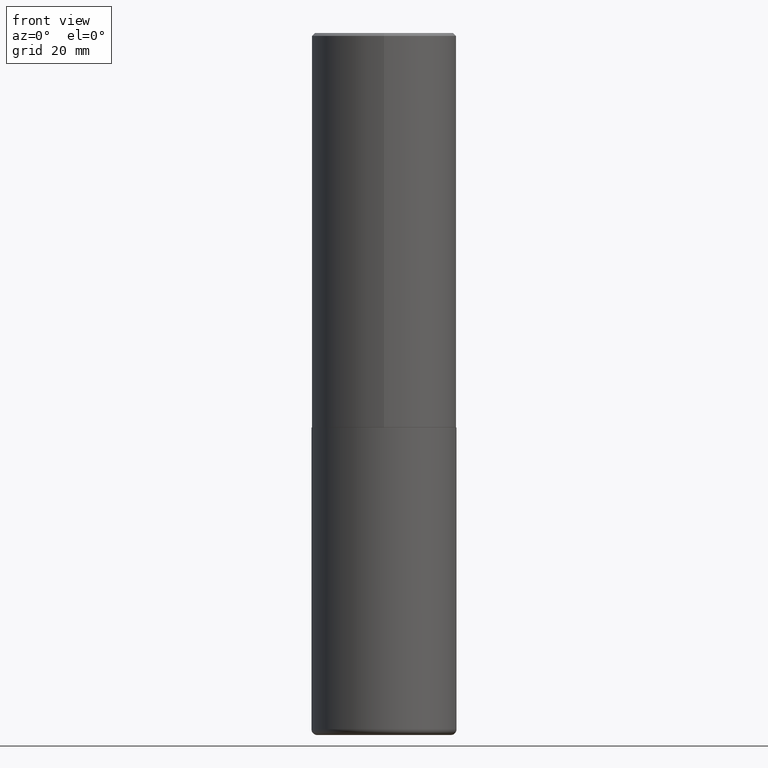
[diagram: clean part render]
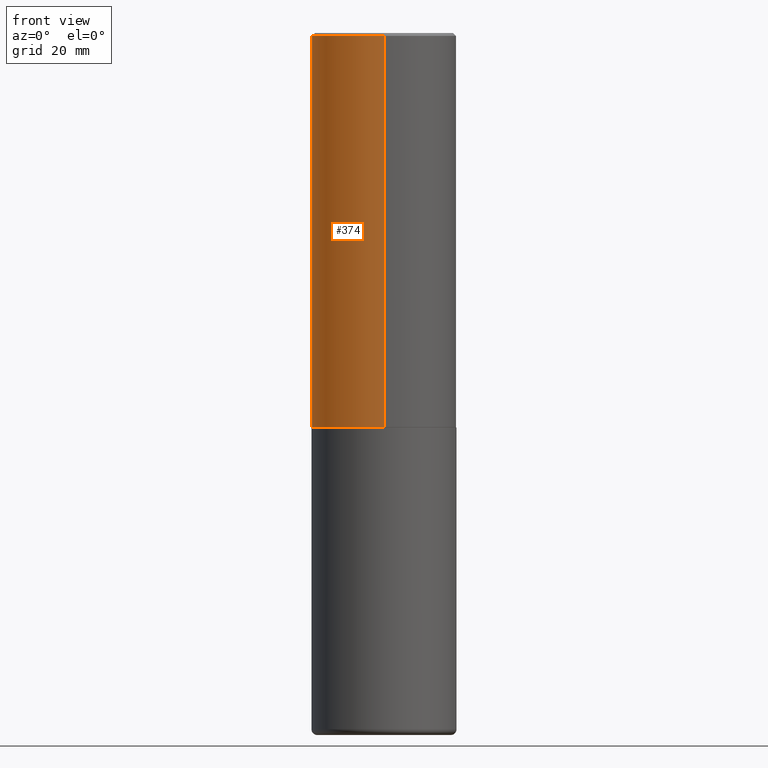
[diagram: same view with one face highlighted and labeled with its STEP entity id]
A machine part, front view. The second image highlights one B-rep face of the part: STEP entity #374.
In plain terms, the highlighted cylindrical surface (partial cylindrical patch) has radius 12.5006 mm, axis along (-0, 0, 1).
Its self-contained STEP definition (entity closure, byte-faithful):
#14 = CIRCLE ( 'NONE', #384, 0.4921500000000002539 ) ;
#21 = ORIENTED_EDGE ( 'NONE', *, *, #412, .T. ) ;
#38 = DIRECTION ( 'NONE',  ( -2.447117958567619178E-29, 3.489119658767506053E-15, 1.000000000000000000 ) ) ;
#49 = CYLINDRICAL_SURFACE ( 'NONE', #166, 0.4921500000000000874 ) ;
#65 = CARTESIAN_POINT ( 'NONE',  ( -3.376394089603257868E-15, -0.4921499999999999764, -0.01999999999999839059 ) ) ;
#95 = ORIENTED_EDGE ( 'NONE', *, *, #389, .T. ) ;
#102 = CARTESIAN_POINT ( 'NONE',  ( 3.496936074043333291E-15, 0.4921500000000000874, -1.717170240062428491E-15 ) ) ;
#121 = CARTESIAN_POINT ( 'NONE',  ( 3.436665081823295777E-15, 0.4921499999999998098, -0.02000000000000182188 ) ) ;
#124 = EDGE_LOOP ( 'NONE', ( #213, #95, #21, #223 ) ) ;
#130 = DIRECTION ( 'NONE',  ( -2.447117958567619178E-29, 3.489119658767506053E-15, 1.000000000000000000 ) ) ;
#132 = DIRECTION ( 'NONE',  ( -2.447117958567619178E-29, 3.489119658767506053E-15, 1.000000000000000000 ) ) ;
#134 = DIRECTION ( 'NONE',  ( -6.982962677686265922E-15, -1.000000000000000000, 3.486624039460257331E-15 ) ) ;
#135 = CARTESIAN_POINT ( 'NONE',  ( -3.436665081823232273E-15, -0.4921500000000095798, -2.676199999999997914 ) ) ;
#142 = VERTEX_POINT ( 'NONE', #277 ) ;
#144 = EDGE_CURVE ( 'NONE', #396, #189, #205, .T. ) ;
#149 = DIRECTION ( 'NONE',  ( -6.982962677686266711E-15, -1.000000000000000000, 3.330506545156064285E-15 ) ) ;
#166 = AXIS2_PLACEMENT_3D ( 'NONE', #247, #132, #367 ) ;
#175 = EDGE_CURVE ( 'NONE', #142, #396, #386, .T. ) ;
#189 = VERTEX_POINT ( 'NONE', #65 ) ;
#205 = CIRCLE ( 'NONE', #267, 0.4921499999999999209 ) ;
#211 = FACE_OUTER_BOUND ( 'NONE', #124, .T. ) ;
#213 = ORIENTED_EDGE ( 'NONE', *, *, #175, .F. ) ;
#214 = CARTESIAN_POINT ( 'NONE',  ( 6.548977080718662055E-29, -9.337582030793598206E-15, -2.676199999999999690 ) ) ;
#223 = ORIENTED_EDGE ( 'NONE', *, *, #144, .F. ) ;
#247 = CARTESIAN_POINT ( 'NONE',  ( 0.000000000000000000, 0.000000000000000000, 0.000000000000000000 ) ) ;
#257 = DIRECTION ( 'NONE',  ( -2.447117958567619178E-29, 3.489119658767506053E-15, 1.000000000000000000 ) ) ;
#267 = AXIS2_PLACEMENT_3D ( 'NONE', #305, #130, #134 ) ;
#276 = DIRECTION ( 'NONE',  ( -2.447117958567619178E-29, 3.489119658767506053E-15, 1.000000000000000000 ) ) ;
#277 = CARTESIAN_POINT ( 'NONE',  ( 3.496936074043367212E-15, 0.4921499999999909281, -2.676200000000001467 ) ) ;
#305 = CARTESIAN_POINT ( 'NONE',  ( 4.894235917135264524E-31, -6.978239317535049922E-17, -0.02000000000000010797 ) ) ;
#318 = VERTEX_POINT ( 'NONE', #135 ) ;
#327 = VECTOR ( 'NONE', #38, 39.37007874015748143 ) ;
#367 = DIRECTION ( 'NONE',  ( -6.982962677686265922E-15, -1.000000000000000000, 3.489119658767506053E-15 ) ) ;
#370 = LINE ( 'NONE', #402, #408 ) ;
#374 = ADVANCED_FACE ( 'NONE', ( #211 ), #49, .T. ) ;
#384 = AXIS2_PLACEMENT_3D ( 'NONE', #214, #276, #149 ) ;
#386 = LINE ( 'NONE', #102, #327 ) ;
#389 = EDGE_CURVE ( 'NONE', #142, #318, #14, .T. ) ;
#396 = VERTEX_POINT ( 'NONE', #121 ) ;
#402 = CARTESIAN_POINT ( 'NONE',  ( -3.436665081823296565E-15, -0.4921500000000000874, 1.717170240062428491E-15 ) ) ;
#408 = VECTOR ( 'NONE', #257, 39.37007874015748143 ) ;
#412 = EDGE_CURVE ( 'NONE', #318, #189, #370, .T. ) ;